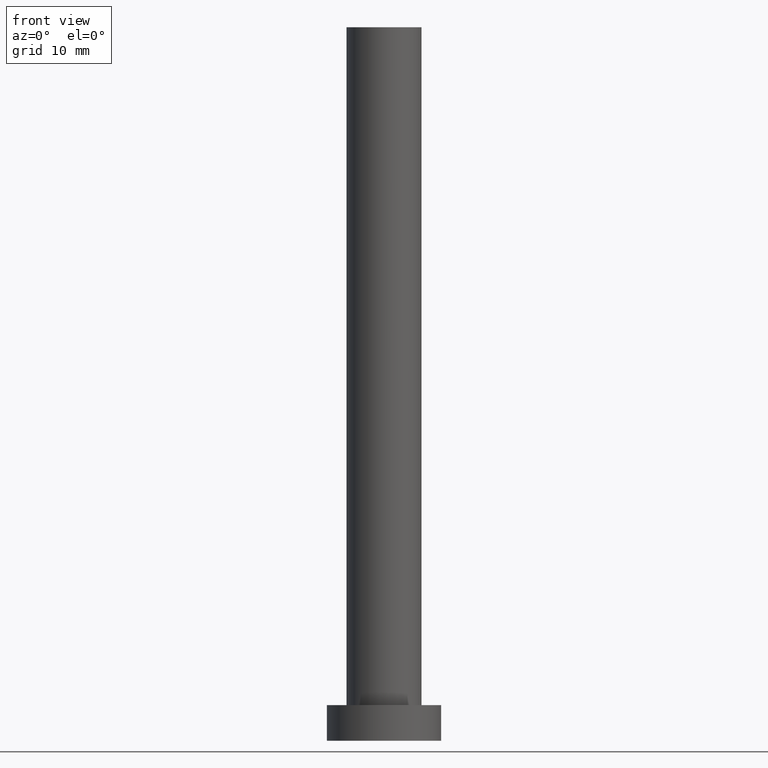
[diagram: clean part render]
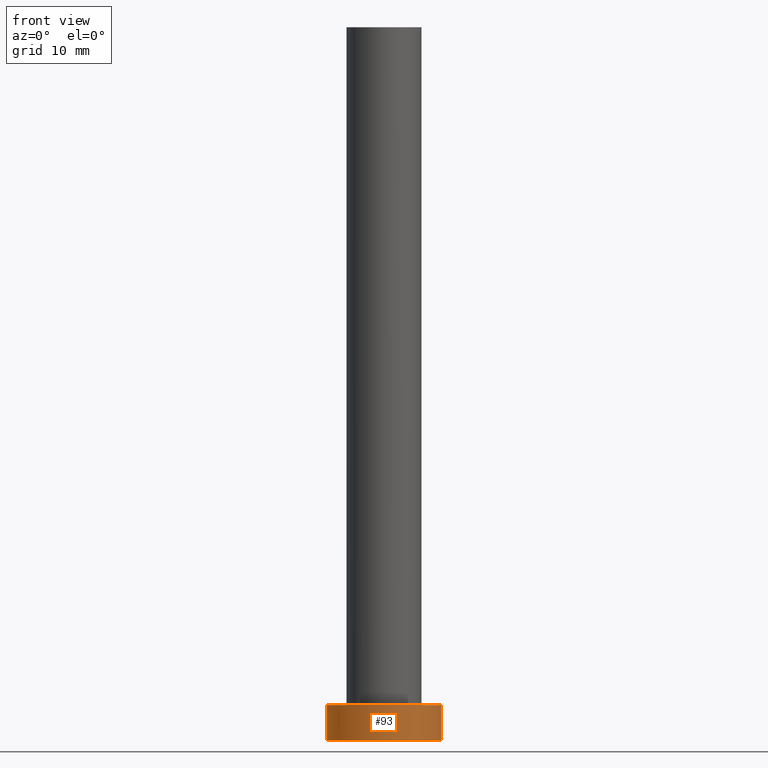
[diagram: same view with one face highlighted and labeled with its STEP entity id]
A machine part, front view. The second image highlights one B-rep face of the part: STEP entity #93.
In plain terms, the highlighted cylindrical surface (partial cylindrical patch) has radius 8 mm, axis along (-0, -0, -1).
Its self-contained STEP definition (entity closure, byte-faithful):
#11 = DIRECTION ( 'NONE',  ( 1.000000000000000000, 0.000000000000000000, 0.000000000000000000 ) ) ;
#14 = DIRECTION ( 'NONE',  ( 1.000000000000000000, 0.000000000000000000, 0.000000000000000000 ) ) ;
#16 = CARTESIAN_POINT ( 'NONE',  ( -8.000000000000000000, 0.000000000000000000, 5.000000000000000000 ) ) ;
#17 = DIRECTION ( 'NONE',  ( -0.000000000000000000, -0.000000000000000000, -1.000000000000000000 ) ) ;
#22 = DIRECTION ( 'NONE',  ( -0.000000000000000000, -0.000000000000000000, -1.000000000000000000 ) ) ;
#26 = VERTEX_POINT ( 'NONE', #16 ) ;
#30 = ORIENTED_EDGE ( 'NONE', *, *, #204, .F. ) ;
#32 = CARTESIAN_POINT ( 'NONE',  ( 0.000000000000000000, 0.000000000000000000, 5.000000000000000000 ) ) ;
#48 = ORIENTED_EDGE ( 'NONE', *, *, #60, .F. ) ;
#53 = DIRECTION ( 'NONE',  ( -1.000000000000000000, 0.000000000000000000, 0.000000000000000000 ) ) ;
#58 = DIRECTION ( 'NONE',  ( -0.000000000000000000, -0.000000000000000000, -1.000000000000000000 ) ) ;
#59 = AXIS2_PLACEMENT_3D ( 'NONE', #211, #193, #14 ) ;
#60 = EDGE_CURVE ( 'NONE', #26, #201, #97, .T. ) ;
#63 = EDGE_CURVE ( 'NONE', #228, #255, #203, .T. ) ;
#92 = LINE ( 'NONE', #237, #110 ) ;
#93 = ADVANCED_FACE ( 'NONE', ( #129 ), #230, .T. ) ;
#97 = CIRCLE ( 'NONE', #59, 8.000000000000000000 ) ;
#107 = DIRECTION ( 'NONE',  ( 0.000000000000000000, 0.000000000000000000, 1.000000000000000000 ) ) ;
#110 = VECTOR ( 'NONE', #22, 1000.000000000000000 ) ;
#113 = LINE ( 'NONE', #194, #184 ) ;
#119 = CARTESIAN_POINT ( 'NONE',  ( 8.000000000000000000, 9.797174393178825657E-16, 5.000000000000000000 ) ) ;
#121 = ORIENTED_EDGE ( 'NONE', *, *, #63, .T. ) ;
#129 = FACE_OUTER_BOUND ( 'NONE', #188, .T. ) ;
#133 = AXIS2_PLACEMENT_3D ( 'NONE', #32, #17, #53 ) ;
#175 = CARTESIAN_POINT ( 'NONE',  ( 8.000000000000000000, 9.797174393178825657E-16, 0.000000000000000000 ) ) ;
#184 = VECTOR ( 'NONE', #58, 1000.000000000000000 ) ;
#188 = EDGE_LOOP ( 'NONE', ( #30, #48, #243, #121 ) ) ;
#191 = EDGE_CURVE ( 'NONE', #26, #228, #113, .T. ) ;
#193 = DIRECTION ( 'NONE',  ( 0.000000000000000000, 0.000000000000000000, 1.000000000000000000 ) ) ;
#194 = CARTESIAN_POINT ( 'NONE',  ( -8.000000000000000000, 0.000000000000000000, 5.000000000000000000 ) ) ;
#195 = CARTESIAN_POINT ( 'NONE',  ( -8.000000000000000000, 0.000000000000000000, 0.000000000000000000 ) ) ;
#201 = VERTEX_POINT ( 'NONE', #119 ) ;
#203 = CIRCLE ( 'NONE', #249, 8.000000000000000000 ) ;
#204 = EDGE_CURVE ( 'NONE', #201, #255, #92, .T. ) ;
#211 = CARTESIAN_POINT ( 'NONE',  ( 0.000000000000000000, 0.000000000000000000, 5.000000000000000000 ) ) ;
#228 = VERTEX_POINT ( 'NONE', #195 ) ;
#230 = CYLINDRICAL_SURFACE ( 'NONE', #133, 8.000000000000000000 ) ;
#237 = CARTESIAN_POINT ( 'NONE',  ( 8.000000000000000000, 9.797174393178825657E-16, 5.000000000000000000 ) ) ;
#243 = ORIENTED_EDGE ( 'NONE', *, *, #191, .T. ) ;
#249 = AXIS2_PLACEMENT_3D ( 'NONE', #252, #107, #11 ) ;
#252 = CARTESIAN_POINT ( 'NONE',  ( 0.000000000000000000, 0.000000000000000000, 0.000000000000000000 ) ) ;
#255 = VERTEX_POINT ( 'NONE', #175 ) ;